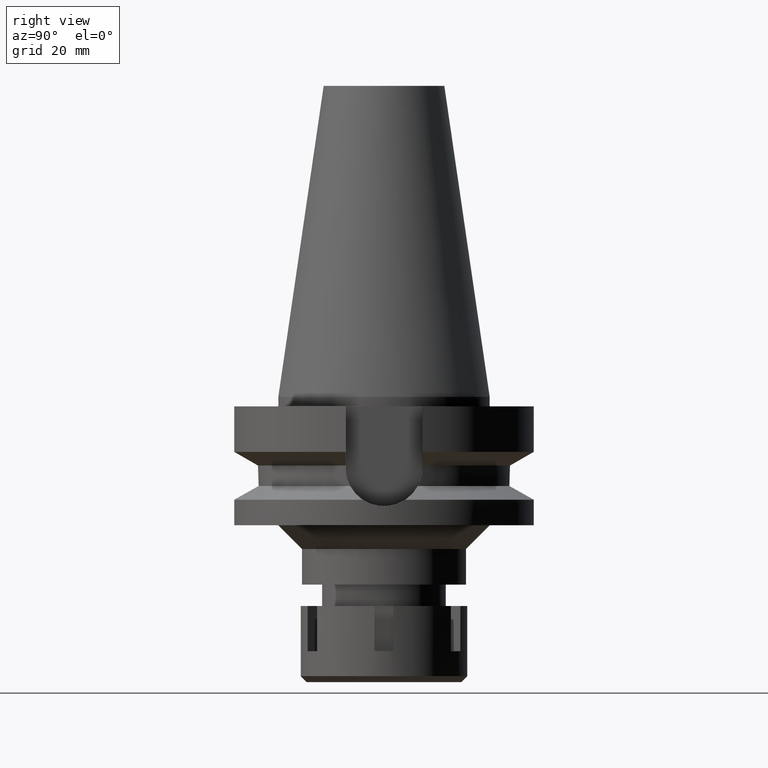
[diagram: clean part render]
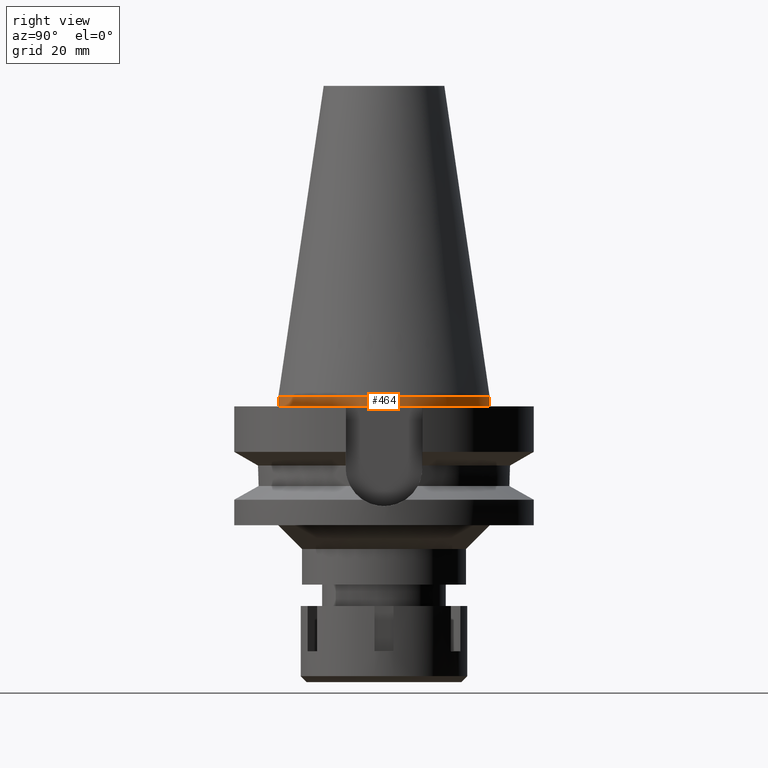
[diagram: same view with one face highlighted and labeled with its STEP entity id]
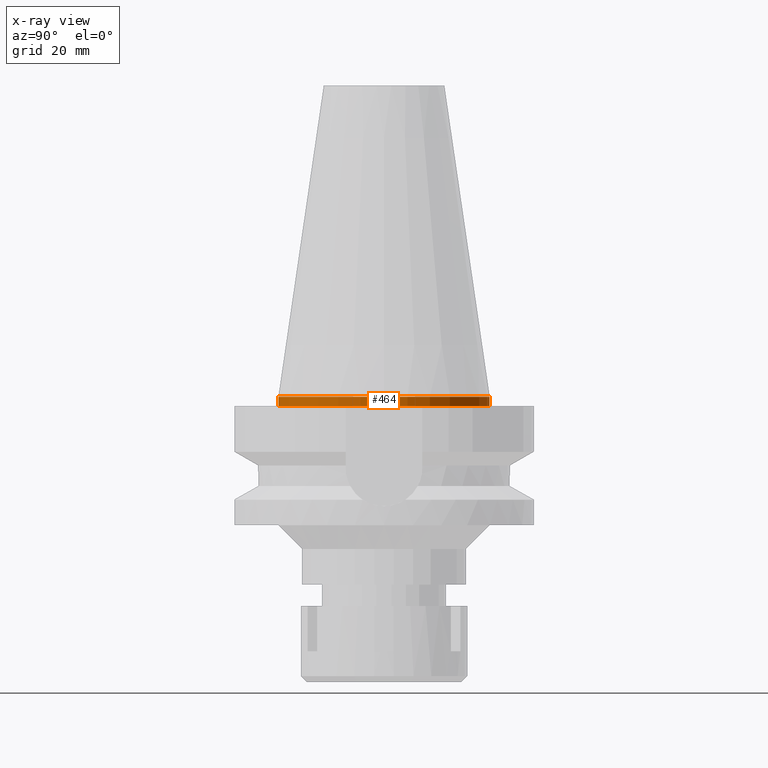
[diagram: x-ray of the same camera — body ghosted, the highlighted face saturated]
A machine part, right view. The second image highlights one B-rep face of the part: STEP entity #464.
The next image is the same camera in x-ray: the body ghosted, the highlighted face saturated — about 0% of this face is hidden behind the body in this view.
In plain terms, the highlighted cylindrical surface (partial cylindrical patch) has radius 22.225 mm, axis along (0, 0, -1).
Its self-contained STEP definition (entity closure, byte-faithful):
#34 = LINE ( 'NONE', #58, #1283 ) ;
#58 = CARTESIAN_POINT ( 'NONE',  ( 0.0000000000000000000, 22.22500000000000142, 1.421085471519999843E-14 ) ) ;
#124 = DIRECTION ( 'NONE',  ( 0.0000000000000000000, 0.0000000000000000000, 1.000000000000000000 ) ) ;
#180 = DIRECTION ( 'NONE',  ( 0.0000000000000000000, 1.000000000000000000, 0.0000000000000000000 ) ) ;
#348 = DIRECTION ( 'NONE',  ( 0.0000000000000000000, 8.171241461240999414E-14, -1.000000000000000000 ) ) ;
#420 = CARTESIAN_POINT ( 'NONE',  ( 0.0000000000000000000, 22.22500000000000142, 1.421085471519999843E-14 ) ) ;
#464 = ADVANCED_FACE ( 'NONE', ( #545 ), #3296, .T. ) ;
#545 = FACE_OUTER_BOUND ( 'NONE', #1571, .T. ) ;
#681 = DIRECTION ( 'NONE',  ( 0.0000000000000000000, -8.348877145181000479E-14, -1.000000000000000000 ) ) ;
#690 = CARTESIAN_POINT ( 'NONE',  ( 0.0000000000000000000, -22.22500000000000142, 1.421085471519999843E-14 ) ) ;
#753 = VERTEX_POINT ( 'NONE', #2067 ) ;
#802 = DIRECTION ( 'NONE',  ( 0.0000000000000000000, 0.0000000000000000000, -1.000000000000000000 ) ) ;
#856 = EDGE_CURVE ( 'NONE', #2220, #753, #2688, .T. ) ;
#1014 = DIRECTION ( 'NONE',  ( 0.0000000000000000000, 0.0000000000000000000, -1.000000000000000000 ) ) ;
#1157 = AXIS2_PLACEMENT_3D ( 'NONE', #2587, #124, #1246 ) ;
#1195 = VERTEX_POINT ( 'NONE', #690 ) ;
#1246 = DIRECTION ( 'NONE',  ( 0.0000000000000000000, -1.000000000000000000, 0.0000000000000000000 ) ) ;
#1253 = CARTESIAN_POINT ( 'NONE',  ( 0.0000000000000000000, 1.625106302469000024E-14, 2.842170943039999687E-14 ) ) ;
#1283 = VECTOR ( 'NONE', #348, 1000.000000000000000 ) ;
#1571 = EDGE_LOOP ( 'NONE', ( #3188, #1860, #2914, #3267 ) ) ;
#1613 = AXIS2_PLACEMENT_3D ( 'NONE', #1911, #802, #3488 ) ;
#1649 = CARTESIAN_POINT ( 'NONE',  ( 0.0000000000000000000, -22.22500000000000142, -2.000000000000000000 ) ) ;
#1700 = VERTEX_POINT ( 'NONE', #420 ) ;
#1860 = ORIENTED_EDGE ( 'NONE', *, *, #2706, .T. ) ;
#1911 = CARTESIAN_POINT ( 'NONE',  ( 0.0000000000000000000, 2.097452572899999775E-14, 71.26999999999999602 ) ) ;
#2051 = CARTESIAN_POINT ( 'NONE',  ( 0.0000000000000000000, -22.22500000000000142, 1.421085471519999843E-14 ) ) ;
#2067 = CARTESIAN_POINT ( 'NONE',  ( 0.0000000000000000000, 22.22500000000000142, -2.000000000000000000 ) ) ;
#2220 = VERTEX_POINT ( 'NONE', #1649 ) ;
#2307 = AXIS2_PLACEMENT_3D ( 'NONE', #1253, #1014, #180 ) ;
#2453 = EDGE_CURVE ( 'NONE', #1700, #753, #34, .T. ) ;
#2565 = LINE ( 'NONE', #2051, #2990 ) ;
#2587 = CARTESIAN_POINT ( 'NONE',  ( 0.0000000000000000000, 2.097452572899999775E-14, -2.000000000000000000 ) ) ;
#2598 = CIRCLE ( 'NONE', #2307, 22.22500000000000142 ) ;
#2688 = CIRCLE ( 'NONE', #1157, 22.22500000000000142 ) ;
#2706 = EDGE_CURVE ( 'NONE', #1195, #2220, #2565, .T. ) ;
#2914 = ORIENTED_EDGE ( 'NONE', *, *, #856, .T. ) ;
#2990 = VECTOR ( 'NONE', #681, 1000.000000000000000 ) ;
#3188 = ORIENTED_EDGE ( 'NONE', *, *, #3287, .T. ) ;
#3267 = ORIENTED_EDGE ( 'NONE', *, *, #2453, .F. ) ;
#3287 = EDGE_CURVE ( 'NONE', #1700, #1195, #2598, .T. ) ;
#3296 = CYLINDRICAL_SURFACE ( 'NONE', #1613, 22.22500000000000142 ) ;
#3488 = DIRECTION ( 'NONE',  ( 0.0000000000000000000, -1.000000000000000000, 0.0000000000000000000 ) ) ;